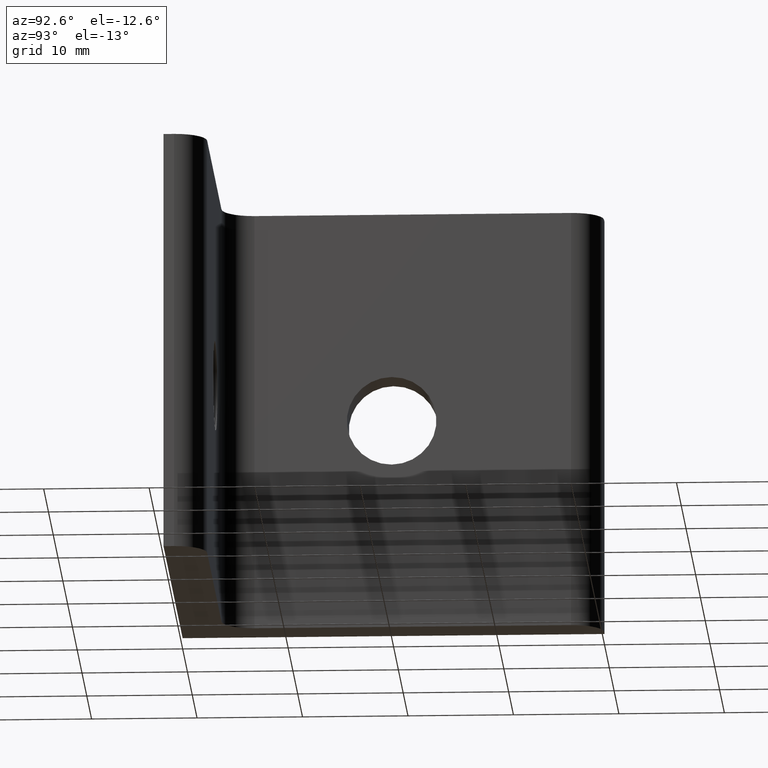
[diagram: clean part render]
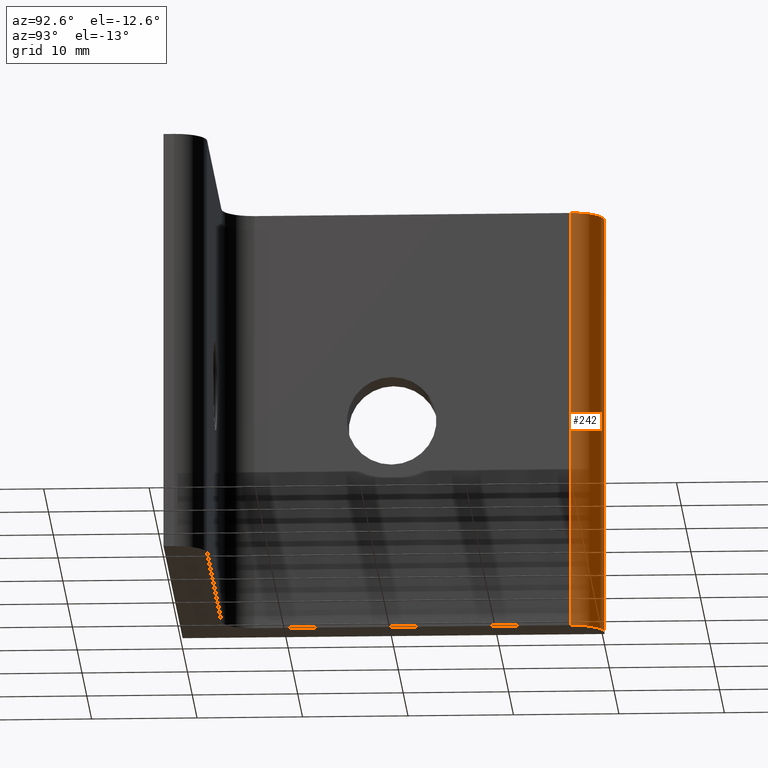
[diagram: same view with one face highlighted and labeled with its STEP entity id]
A machine part, auxiliary view. The second image highlights one B-rep face of the part: STEP entity #242.
In plain terms, the highlighted cylindrical surface (edge-blend (fillet) strip) has radius 3 mm, axis along (0, 0, -1).
Its self-contained STEP definition (entity closure, byte-faithful):
#31=LINE('',#394,#52);
#33=LINE('',#400,#54);
#52=VECTOR('',#323,40.);
#54=VECTOR('',#329,40.);
#80=FACE_OUTER_BOUND('',#99,.T.);
#99=EDGE_LOOP('',(#202,#203,#204,#205));
#111=CIRCLE('',#266,3.);
#112=CIRCLE('',#267,3.);
#131=VERTEX_POINT('',#391);
#132=VERTEX_POINT('',#393);
#133=VERTEX_POINT('',#397);
#134=VERTEX_POINT('',#399);
#159=EDGE_CURVE('',#132,#131,#31,.T.);
#161=EDGE_CURVE('',#131,#133,#111,.T.);
#162=EDGE_CURVE('',#134,#133,#33,.T.);
#163=EDGE_CURVE('',#132,#134,#112,.T.);
#202=ORIENTED_EDGE('',*,*,#161,.T.);
#203=ORIENTED_EDGE('',*,*,#162,.F.);
#204=ORIENTED_EDGE('',*,*,#163,.F.);
#205=ORIENTED_EDGE('',*,*,#159,.T.);
#232=CYLINDRICAL_SURFACE('',#265,3.);
#242=ADVANCED_FACE('',(#80),#232,.T.);
#265=AXIS2_PLACEMENT_3D('',#396,#325,#326);
#266=AXIS2_PLACEMENT_3D('',#398,#327,#328);
#267=AXIS2_PLACEMENT_3D('',#401,#330,#331);
#323=DIRECTION('',(0.,0.,-1.));
#325=DIRECTION('center_axis',(0.,0.,-1.));
#326=DIRECTION('ref_axis',(-1.,0.,0.));
#327=DIRECTION('center_axis',(0.,0.,1.));
#328=DIRECTION('ref_axis',(1.,0.,0.));
#329=DIRECTION('',(0.,0.,-1.));
#330=DIRECTION('center_axis',(0.,0.,1.));
#331=DIRECTION('ref_axis',(1.,0.,0.));
#391=CARTESIAN_POINT('',(4.00000000000002,37.,-20.));
#393=CARTESIAN_POINT('',(4.00000000000002,37.,20.));
#394=CARTESIAN_POINT('',(4.00000000000002,37.,20.));
#396=CARTESIAN_POINT('Origin',(1.,37.,20.00000001));
#397=CARTESIAN_POINT('',(1.,40.,-20.));
#398=CARTESIAN_POINT('Origin',(1.,37.,-20.));
#399=CARTESIAN_POINT('',(1.,40.,20.));
#400=CARTESIAN_POINT('',(1.,40.,20.));
#401=CARTESIAN_POINT('Origin',(1.,37.,20.));